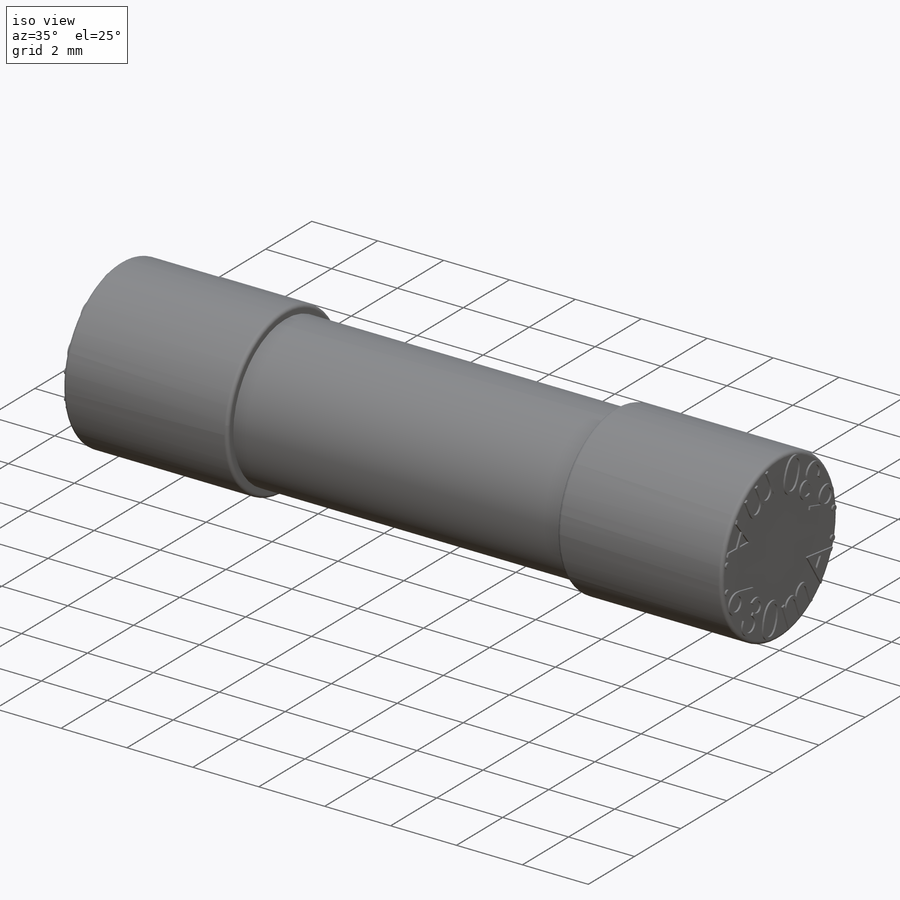
[diagram: iso view]
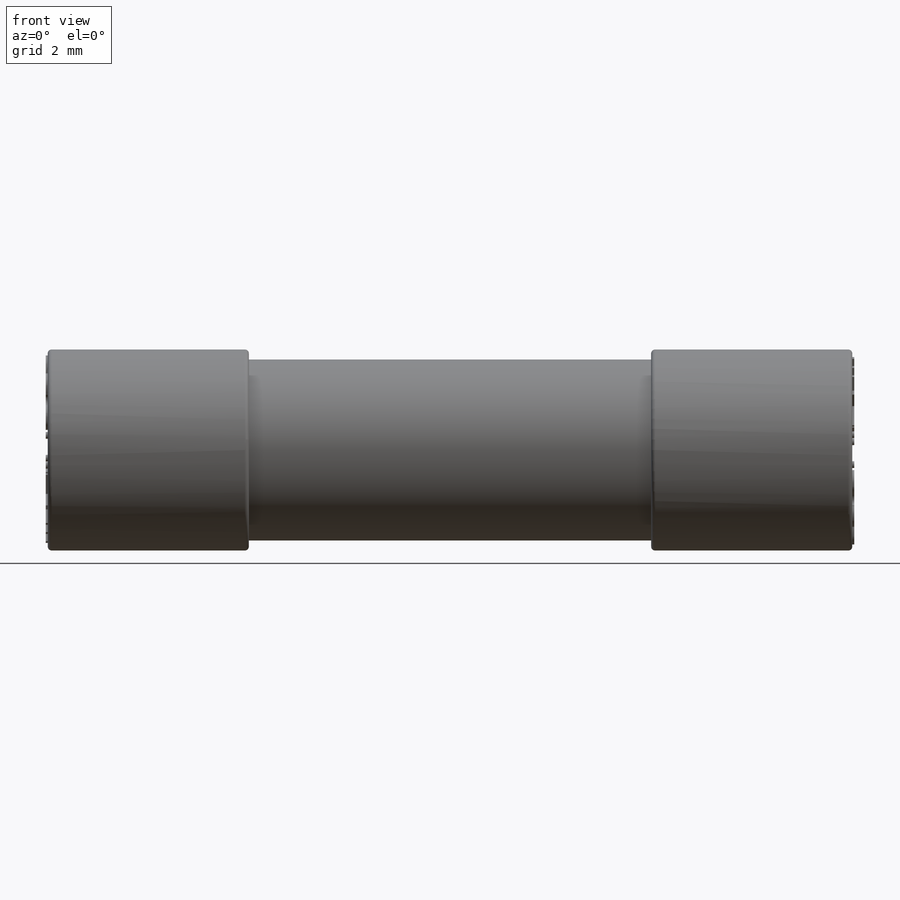
[diagram: front view]
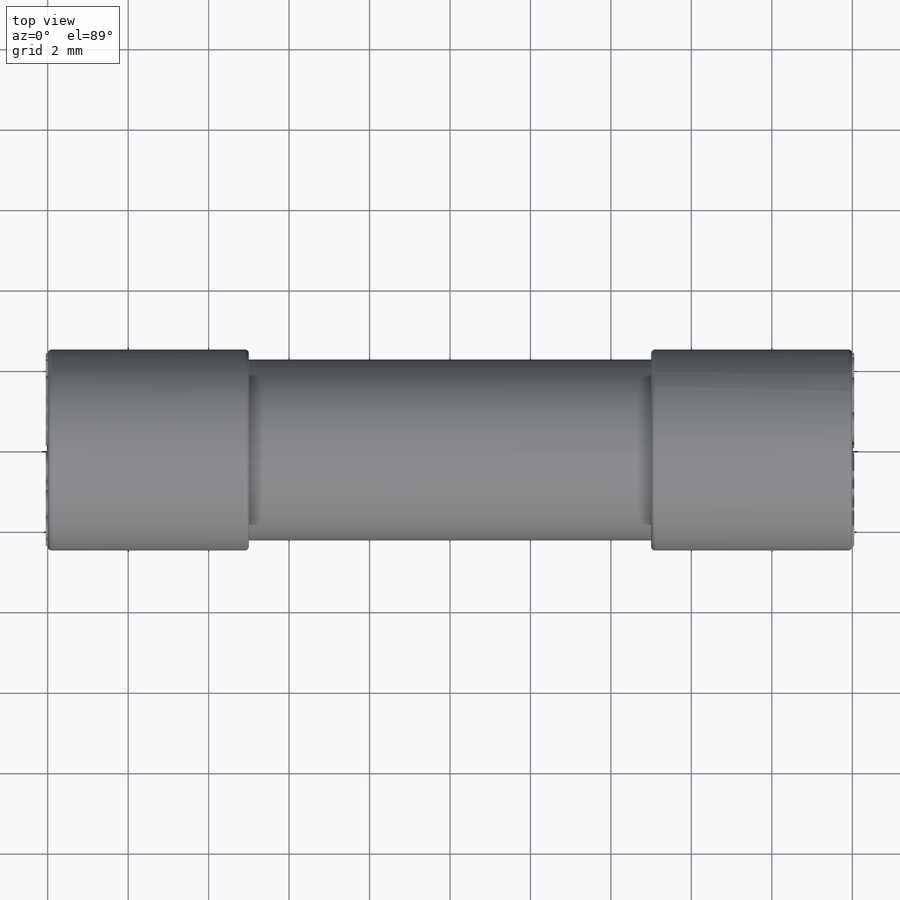
[diagram: top view]
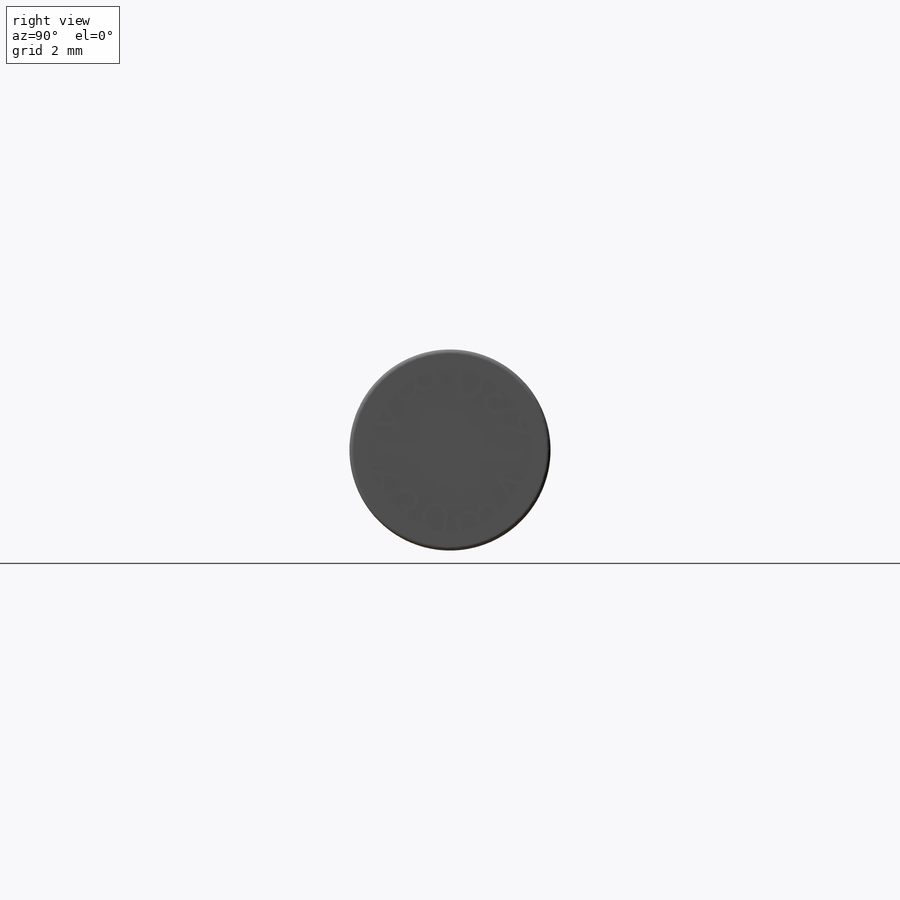
[diagram: right view]
SOLIDWORKS PART (.sldprt)
format: sldprt  version: not decoded by parser v0  size: 961,024 bytes
history: native  units: mm
features: sketch x4, plane x3, revolve x2, extrude x2, material x1, fillet x1 (+10 scaffold rows collapsed)
feature tree (23):
  scaffold x10  (default folders/planes/origin — collapsed)
  material  "AISI 304"
  plane  "Piano frontale"
  plane  "Piano superiore"
  plane  "Piano destro"
  sketch  "Schizzo4"  dims[c1.D1=19.5mm c1.D2=2.25mm c1.D4=0.25mm c2.D2=2.25mm c2.D3=0.25mm]
  revolve  "Rivoluzione3"  Angle=360deg
  sketch  "Schizzo6"  dims[D1=0.25mm D2=5.0mm D3=2.5mm D4=0.1mm]
  revolve  "Rivoluzione4"  Angle=360deg
  fillet  "Raccordo1"  Radius=0.1mm
  sketch  "Schizzo7"
  extrude  "Estrusione-Estrusione4"  Depth=0.05mm
  sketch  "Schizzo8"
  extrude  "Estrusione-Estrusione5"  Depth=0.05mm
decode coverage: 7 of 9 modeling features carry decoded parameters
note: suppression state not decoded; provenance and decode notes live in map.json
